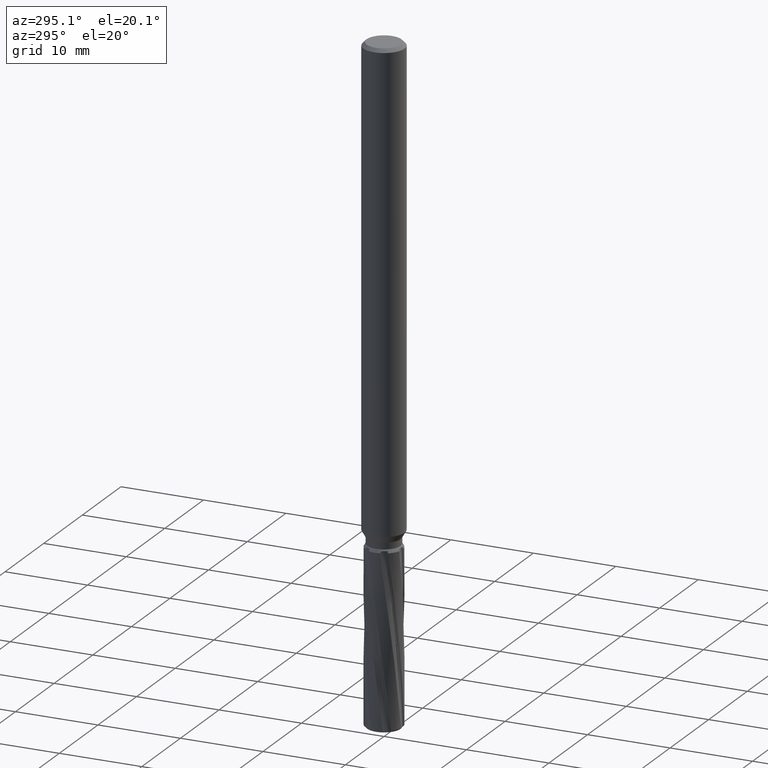
[diagram: clean part render]
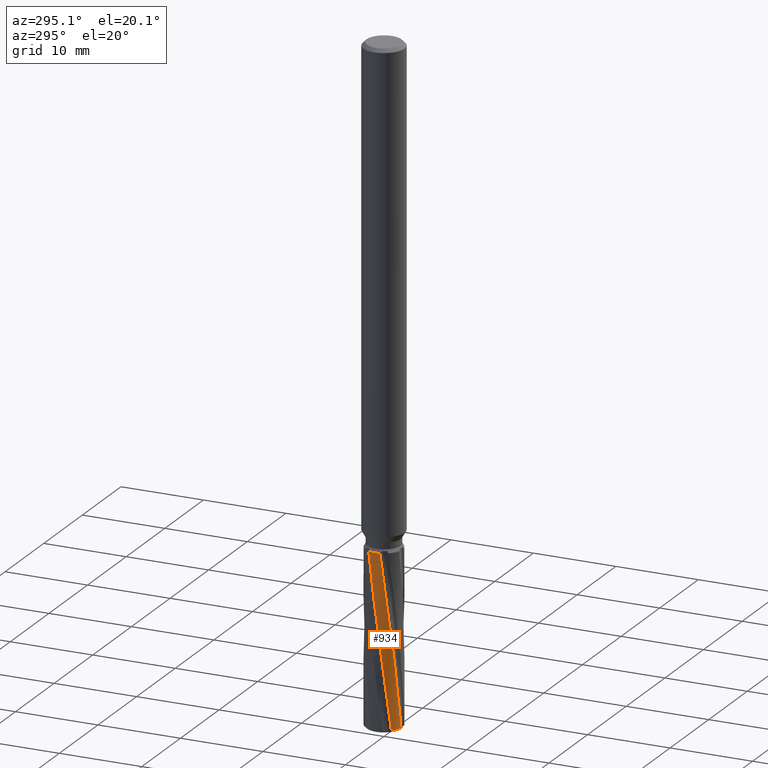
[diagram: same view with one face highlighted and labeled with its STEP entity id]
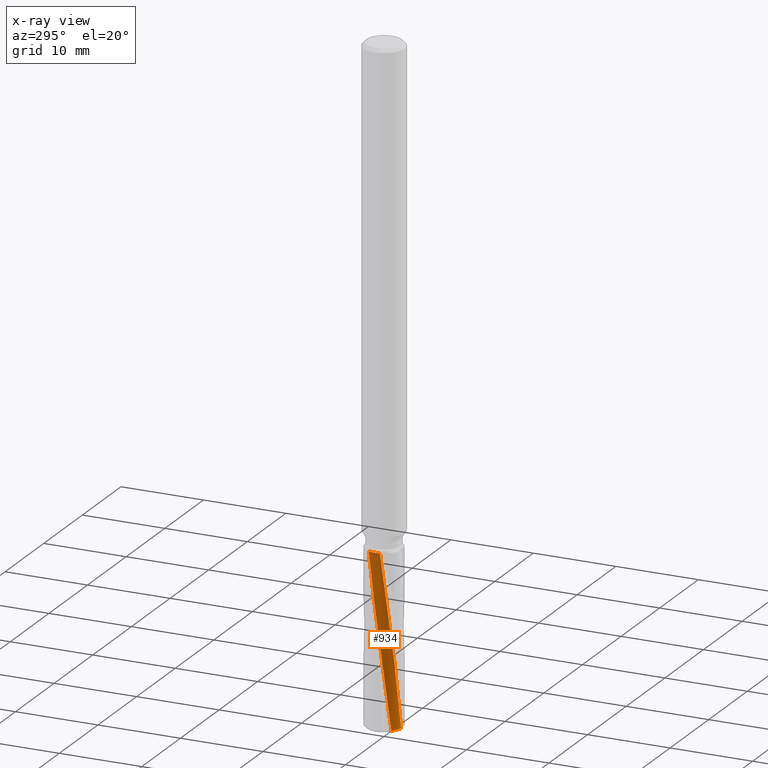
[diagram: x-ray of the same camera — body ghosted, the highlighted face saturated]
A machine part, auxiliary view. The second image highlights one B-rep face of the part: STEP entity #934.
The next image is the same camera in x-ray: the body ghosted, the highlighted face saturated — about 0% of this face is hidden behind the body in this view.
In plain terms, the highlighted cylindrical surface (edge-blend (fillet) strip) has radius 2.25 mm, axis along (-0, -0, 1).
Its self-contained STEP definition (entity closure, byte-faithful):
#928=EDGE_CURVE('',#1194,#1690,#2201,.T.);
#934=ADVANCED_FACE('',(#2207),#2208,.T.);
#1156=VERTEX_POINT('',#2452);
#1194=VERTEX_POINT('',#2494);
#1278=VERTEX_POINT('',#2582);
#1364=EDGE_CURVE('',#1156,#1194,#2679,.T.);
#1642=EDGE_CURVE('',#1156,#1278,#2982,.T.);
#1690=VERTEX_POINT('',#3033);
#1788=EDGE_CURVE('',#1690,#1278,#3141,.T.);
#2201=CIRCLE('',#5080,2.25);
#2207=FACE_OUTER_BOUND('',#5090,.T.);
#2208=CYLINDRICAL_SURFACE('',#5091,2.25);
#2452=CARTESIAN_POINT('',(-0.330520178297212,-2.22559124992402,-79.775));
#2494=CARTESIAN_POINT('',(-2.18830077159059,-0.523296983610693,-59.0));
#2582=CARTESIAN_POINT('',(-1.55292828701563,-1.62816268701463,-79.775));
#2679=B_SPLINE_CURVE_WITH_KNOTS('',3,(#8142,#8143,#8144,#8145,#8146,#8147,#8148,#8149,#8150,#8151,#8152,#8153,#8154,#8155),.UNSPECIFIED.,.F.,.F.,(4,2,2,2,2,2,4),(0.0,2.61756637328957,11.8450243276115,15.9225985980985,19.5853204982072,21.694393415708,23.6433837956184),.UNSPECIFIED.);
#2982=CIRCLE('',#9984,2.25);
#3033=CARTESIAN_POINT('',(-2.06783036511086,0.886892091026584,-59.0));
#3141=B_SPLINE_CURVE_WITH_KNOTS('',3,(#11100,#11101,#11102,#11103,#11104,#11105,#11106,#11107,#11108,#11109,#11110,#11111,#11112,#11113,#11114,#11115,#11116,#11117),.UNSPECIFIED.,.F.,.F.,(4,2,2,2,2,2,2,2,4),(0.0,2.24763170622907,3.80169951045623,7.09311983384733,9.53967171687499,10.439282537786,13.5772190579379,15.1335946286711,16.6910953787406),.UNSPECIFIED.);
#5080=AXIS2_PLACEMENT_3D('',#12253,#12254,#12255);
#5090=EDGE_LOOP('',(#12257,#12258,#12259,#12260));
#5091=AXIS2_PLACEMENT_3D('',#12261,#12262,#12263);
#8142=CARTESIAN_POINT('',(-0.330520178297211,-2.22559124992402,-79.775));
#8143=CARTESIAN_POINT('',(-0.440970455152273,-2.20918839733357,-78.9096523586505));
#8144=CARTESIAN_POINT('',(-0.550097058928136,-2.18457966321012,-78.0431285386711));
#8145=CARTESIAN_POINT('',(-1.03388521381139,-2.03687471081269,-74.1282874957521));
#8146=CARTESIAN_POINT('',(-1.37333814167065,-1.82493173595573,-71.1689946759203));
#8147=CARTESIAN_POINT('',(-1.76020671596182,-1.41217250815701,-66.7828532917469));
#8148=CARTESIAN_POINT('',(-1.8639105923843,-1.27225516165503,-65.4250205000065));
#8149=CARTESIAN_POINT('',(-2.0285781713004,-0.985807020428563,-62.8968354446542));
#8150=CARTESIAN_POINT('',(-2.07690601125886,-0.870505606183223,-62.002171174099));
#8151=CARTESIAN_POINT('',(-2.12836792426726,-0.731760862105641,-60.9055724385538));
#8152=CARTESIAN_POINT('',(-2.14422748376442,-0.683386421171441,-60.5096575669304));
#8153=CARTESIAN_POINT('',(-2.16998785323642,-0.596284968128936,-59.7393286935818));
#8154=CARTESIAN_POINT('',(-2.18007980123993,-0.557675083093395,-59.370484976953));
#8155=CARTESIAN_POINT('',(-2.18830077159059,-0.523296983610693,-59.0));
#9984=AXIS2_PLACEMENT_3D('',#13014,#13015,#13016);
#11100=CARTESIAN_POINT('',(-2.06783036511085,0.886892091026588,-59.0));
#11101=CARTESIAN_POINT('',(-2.12022699866812,0.764726890777826,-59.7373240352493));
#11102=CARTESIAN_POINT('',(-2.15538002845603,0.652998013510385,-60.4781928258262));
#11103=CARTESIAN_POINT('',(-2.19643158017267,0.492710028107104,-61.7520498231974));
#11104=CARTESIAN_POINT('',(-2.20801654251374,0.440504797027545,-62.2296806175692));
#11105=CARTESIAN_POINT('',(-2.24924054781467,0.185162586316163,-64.3341071574907));
#11106=CARTESIAN_POINT('',(-2.25763214501264,0.00515125558764148,-65.708042040536));
#11107=CARTESIAN_POINT('',(-2.23178192950018,-0.317288695742607,-68.1730306280472));
#11108=CARTESIAN_POINT('',(-2.20830325623528,-0.452512133715664,-69.2172494313745));
#11109=CARTESIAN_POINT('',(-2.1594410693846,-0.633928781151153,-70.6774909245499));
#11110=CARTESIAN_POINT('',(-2.14458015963017,-0.682584487539371,-71.0727820618012));
#11111=CARTESIAN_POINT('',(-2.06955635832775,-0.90090270807872,-72.8605661703801));
#11112=CARTESIAN_POINT('',(-1.99119124268484,-1.06291662642971,-74.2336125852154));
#11113=CARTESIAN_POINT('',(-1.84651548492944,-1.28871474919052,-76.3123076311043));
#11114=CARTESIAN_POINT('',(-1.79392123494837,-1.36102831442995,-77.0069989003092));
#11115=CARTESIAN_POINT('',(-1.6797996805957,-1.49961199940288,-78.3916751577506));
#11116=CARTESIAN_POINT('',(-1.61840652621036,-1.56571007669476,-79.0825667782773));
#11117=CARTESIAN_POINT('',(-1.55292828701563,-1.62816268701463,-79.775));
#12253=CARTESIAN_POINT('',(0.0,0.0,-59.0));
#12254=DIRECTION('',(0.0,0.0,-1.0));
#12255=DIRECTION('',(0.0,1.0,0.0));
#12257=ORIENTED_EDGE('',*,*,#1788,.T.);
#12258=ORIENTED_EDGE('',*,*,#1642,.F.);
#12259=ORIENTED_EDGE('',*,*,#1364,.T.);
#12260=ORIENTED_EDGE('',*,*,#928,.T.);
#12261=CARTESIAN_POINT('',(0.0,0.0,-69.3875));
#12262=DIRECTION('',(-0.0,-0.0,1.0));
#12263=DIRECTION('',(0.0,1.0,0.0));
#13014=CARTESIAN_POINT('',(0.0,0.0,-79.775));
#13015=DIRECTION('',(0.0,0.0,-1.0));
#13016=DIRECTION('',(0.0,1.0,0.0));